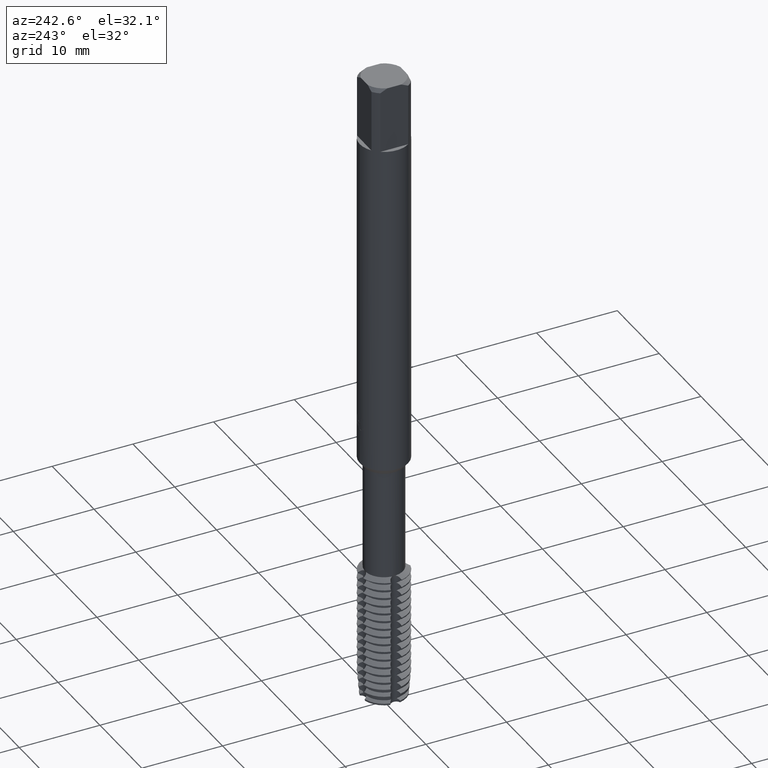
[diagram: clean part render]
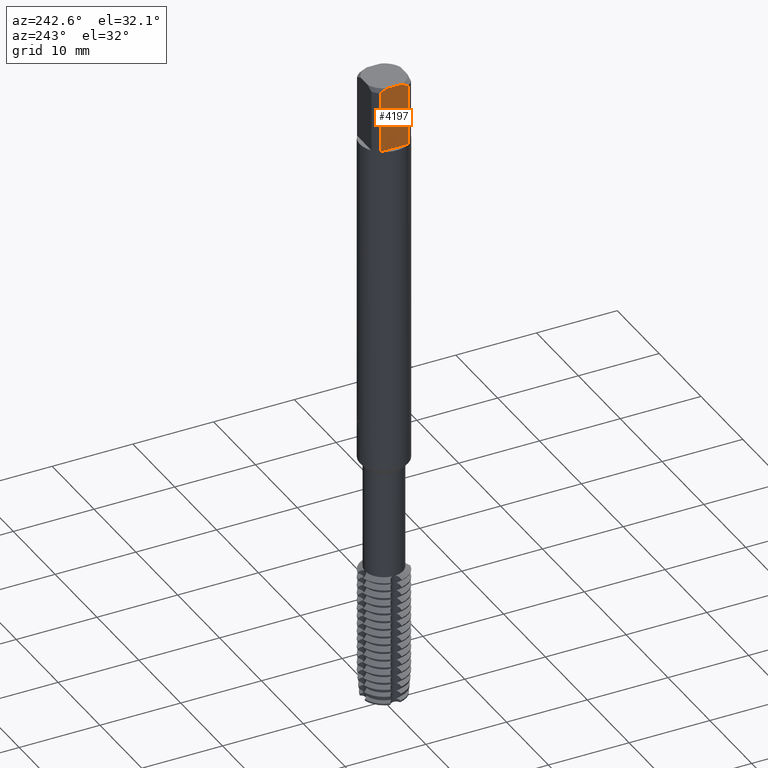
[diagram: same view with one face highlighted and labeled with its STEP entity id]
A machine part, auxiliary view. The second image highlights one B-rep face of the part: STEP entity #4197.
In plain terms, the highlighted planar face has unit normal (-1, 0, 0).
Its self-contained STEP definition (entity closure, byte-faithful):
#3193=EDGE_CURVE('',#7351,#4537,#8639,.T.);
#3361=EDGE_CURVE('',#6115,#3375,#8821,.T.);
#3371=VERTEX_POINT('',#8831);
#3375=VERTEX_POINT('',#8836);
#4197=ADVANCED_FACE('',(#9722),#9723,.T.);
#4265=EDGE_CURVE('',#3371,#5525,#9796,.T.);
#4537=VERTEX_POINT('',#10097);
#5525=VERTEX_POINT('',#11173);
#6115=VERTEX_POINT('',#11806);
#6521=EDGE_CURVE('',#4537,#6115,#12249,.T.);
#7351=VERTEX_POINT('',#13149);
#7685=EDGE_CURVE('',#3375,#3371,#13516,.T.);
#7819=EDGE_CURVE('',#5525,#7351,#13657,.T.);
#8639=(B_SPLINE_CURVE(2,(#15016,#15017,#15018),.UNSPECIFIED.,.F.,.F.)B_SPLINE_CURVE_WITH_KNOTS((3,3),(0.0,0.950549192151446),.UNSPECIFIED.)RATIONAL_B_SPLINE_CURVE((1.0,1.01203284912646,1.0))BOUNDED_CURVE()REPRESENTATION_ITEM('')GEOMETRIC_REPRESENTATION_ITEM()CURVE());
#8821=LINE('',#15355,#15356);
#8831=CARTESIAN_POINT('',(-2.45,1.73132896931808,-0.399999999999999));
#8836=CARTESIAN_POINT('',(-2.45,1.73132896931808,-8.0));
#9722=FACE_OUTER_BOUND('',#17005,.T.);
#9723=PLANE('',#17006);
#9796=(B_SPLINE_CURVE(2,(#17102,#17103,#17104),.UNSPECIFIED.,.F.,.F.)B_SPLINE_CURVE_WITH_KNOTS((3,3),(0.0,0.950549192151446),.UNSPECIFIED.)RATIONAL_B_SPLINE_CURVE((1.0,1.01203284912646,1.0))BOUNDED_CURVE()REPRESENTATION_ITEM('')GEOMETRIC_REPRESENTATION_ITEM()CURVE());
#10097=CARTESIAN_POINT('',(-2.45,-1.73132896931808,-0.399999999999999));
#11173=CARTESIAN_POINT('',(-2.45,0.87034475927646,0.0));
#11806=CARTESIAN_POINT('',(-2.45,-1.73132896931808,-8.0));
#12249=LINE('',#21837,#21838);
#13149=CARTESIAN_POINT('',(-2.45,-0.87034475927646,0.0));
#13516=LINE('',#24232,#24233);
#13657=LINE('',#24516,#24517);
#15016=CARTESIAN_POINT('',(-2.45,-0.870344759276469,2.77555756156289E-016));
#15017=CARTESIAN_POINT('',(-2.45,-1.27008742822436,-0.13381305268384));
#15018=CARTESIAN_POINT('',(-2.45,-1.73132896931808,-0.399999999999999));
#15355=CARTESIAN_POINT('',(-2.45,0.0,-8.0));
#15356=VECTOR('',#25931,1.0);
#17005=EDGE_LOOP('',(#26774,#26775,#26776,#26777,#26778,#26779));
#17006=AXIS2_PLACEMENT_3D('',#26780,#26781,#26782);
#17102=CARTESIAN_POINT('',(-2.45,1.73132896931808,-0.399999999999999));
#17103=CARTESIAN_POINT('',(-2.45,1.27008742822436,-0.13381305268384));
#17104=CARTESIAN_POINT('',(-2.45,0.870344759276469,2.77555756156289E-016));
#21837=CARTESIAN_POINT('',(-2.45,-1.73132896931808,-4.2));
#21838=VECTOR('',#29531,1.0);
#24232=CARTESIAN_POINT('',(-2.45,1.73132896931808,-4.2));
#24233=VECTOR('',#30921,1.0);
#24516=CARTESIAN_POINT('',(-2.45,0.65,0.0));
#24517=VECTOR('',#31019,1.0);
#25931=DIRECTION('',(0.0,1.0,0.0));
#26774=ORIENTED_EDGE('',*,*,#7685,.F.);
#26775=ORIENTED_EDGE('',*,*,#3361,.F.);
#26776=ORIENTED_EDGE('',*,*,#6521,.F.);
#26777=ORIENTED_EDGE('',*,*,#3193,.F.);
#26778=ORIENTED_EDGE('',*,*,#7819,.F.);
#26779=ORIENTED_EDGE('',*,*,#4265,.F.);
#26780=CARTESIAN_POINT('',(-2.45,0.0,-3.5));
#26781=DIRECTION('',(-1.0,0.0,0.0));
#26782=DIRECTION('',(0.0,0.0,-1.0));
#29531=DIRECTION('',(0.0,0.0,-1.0));
#30921=DIRECTION('',(-0.0,-0.0,1.0));
#31019=DIRECTION('',(-0.0,-1.0,0.0));